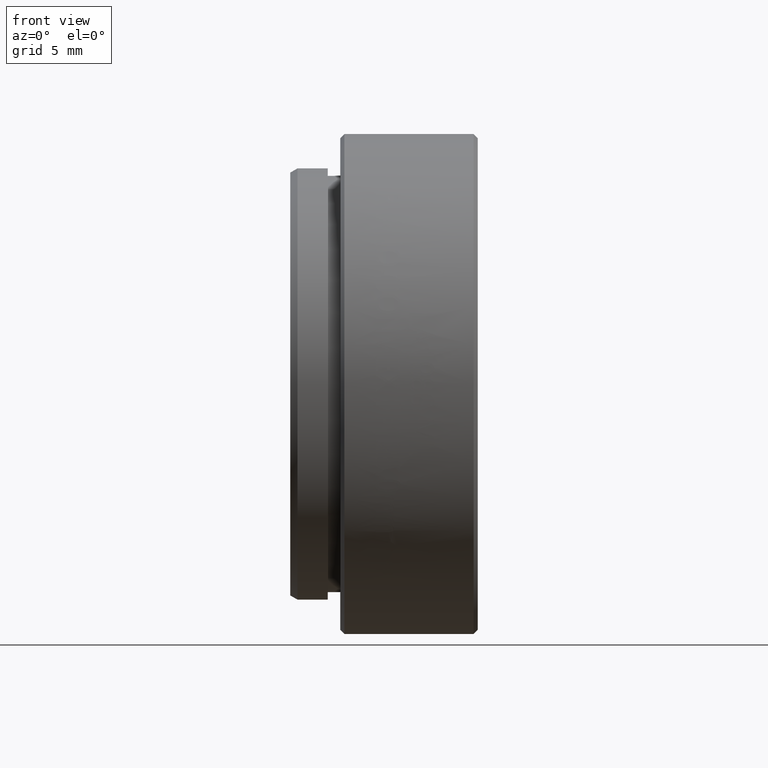
[diagram: clean part render]
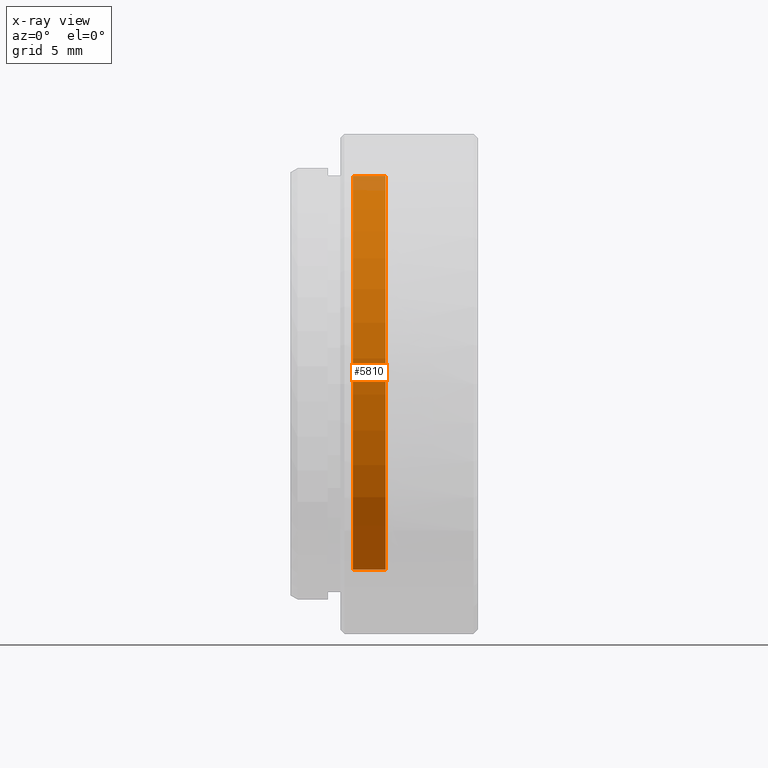
[diagram: x-ray — body ghosted, one internal face saturated and labeled with its STEP entity id]
A machine part, front view, then the same camera in x-ray: the body is ghosted and one INTERNAL B-rep face — a face not visible from any outside direction — is saturated and labeled: STEP entity #5810.
In plain terms, the highlighted cylindrical surface (partial cylindrical patch) has radius 12.7 mm, axis along (1, 0, 0).
Its self-contained STEP definition (entity closure, byte-faithful):
#280 = EDGE_CURVE ( 'NONE', #6030, #602, #8884, .T. ) ;
#315 = CIRCLE ( 'NONE', #7697, 12.69999999999999929 ) ;
#496 = AXIS2_PLACEMENT_3D ( 'NONE', #2512, #4868, #5586 ) ;
#602 = VERTEX_POINT ( 'NONE', #7091 ) ;
#735 = DIRECTION ( 'NONE',  ( 0.0000000000000000000, -0.4552824933293436183, -0.8903470397928081592 ) ) ;
#1077 = LINE ( 'NONE', #9301, #8631 ) ;
#1447 = EDGE_CURVE ( 'NONE', #1611, #3067, #3310, .T. ) ;
#1563 = DIRECTION ( 'NONE',  ( 1.000000000000000000, 0.0000000000000000000, 0.0000000000000000000 ) ) ;
#1611 = VERTEX_POINT ( 'NONE', #7982 ) ;
#1694 = CIRCLE ( 'NONE', #8355, 12.69999999999999929 ) ;
#1726 = CARTESIAN_POINT ( 'NONE',  ( -1.681867954599626014, -5.782087665282663380, -11.30740740536866262 ) ) ;
#2293 = VERTEX_POINT ( 'NONE', #5865 ) ;
#2426 = CARTESIAN_POINT ( 'NONE',  ( -5.625069912103984215, -11.30740740536865729, 5.782087665282662492 ) ) ;
#2512 = CARTESIAN_POINT ( 'NONE',  ( -5.625069912103983327, 0.0000000000000000000, 9.629649721936179265E-32 ) ) ;
#2681 = FACE_OUTER_BOUND ( 'NONE', #9966, .T. ) ;
#3018 = CARTESIAN_POINT ( 'NONE',  ( -7.619999999999991225, -5.782087665282663380, -11.30740740536866262 ) ) ;
#3067 = VERTEX_POINT ( 'NONE', #2426 ) ;
#3310 = CIRCLE ( 'NONE', #496, 12.69999999999999929 ) ;
#3421 = AXIS2_PLACEMENT_3D ( 'NONE', #7510, #5211, #735 ) ;
#3438 = ORIENTED_EDGE ( 'NONE', *, *, #280, .T. ) ;
#3446 = CARTESIAN_POINT ( 'NONE',  ( -7.619999999999991225, 0.0000000000000000000, 9.629649721936179265E-32 ) ) ;
#4095 = EDGE_CURVE ( 'NONE', #2293, #1611, #1077, .T. ) ;
#4243 = EDGE_CURVE ( 'NONE', #3067, #602, #315, .T. ) ;
#4311 = EDGE_CURVE ( 'NONE', #2293, #6030, #1694, .T. ) ;
#4868 = DIRECTION ( 'NONE',  ( 1.000000000000000000, 0.0000000000000000000, 0.0000000000000000000 ) ) ;
#4898 = DIRECTION ( 'NONE',  ( 1.000000000000000000, 0.0000000000000000000, 0.0000000000000000000 ) ) ;
#5211 = DIRECTION ( 'NONE',  ( 1.000000000000000000, 0.0000000000000000000, 0.0000000000000000000 ) ) ;
#5442 = ORIENTED_EDGE ( 'NONE', *, *, #4095, .F. ) ;
#5586 = DIRECTION ( 'NONE',  ( 0.0000000000000000000, -0.4552824933293436183, -0.8903470397928081592 ) ) ;
#5810 = ADVANCED_FACE ( 'NONE', ( #2681 ), #8729, .T. ) ;
#5821 = CARTESIAN_POINT ( 'NONE',  ( -5.625069912103983327, 0.0000000000000000000, 9.629649721936179265E-32 ) ) ;
#5865 = CARTESIAN_POINT ( 'NONE',  ( -7.619999999999991225, 5.782087665282664268, 11.30740740536866085 ) ) ;
#6030 = VERTEX_POINT ( 'NONE', #3018 ) ;
#6970 = ORIENTED_EDGE ( 'NONE', *, *, #4243, .F. ) ;
#7091 = CARTESIAN_POINT ( 'NONE',  ( -5.625069912103983327, -5.782087665282663380, -11.30740740536866262 ) ) ;
#7344 = DIRECTION ( 'NONE',  ( 1.000000000000000000, 0.0000000000000000000, 0.0000000000000000000 ) ) ;
#7374 = DIRECTION ( 'NONE',  ( 0.0000000000000000000, -0.4552824933293436183, -0.8903470397928081592 ) ) ;
#7510 = CARTESIAN_POINT ( 'NONE',  ( -1.681867954599626014, 0.0000000000000000000, 9.629649721936179265E-32 ) ) ;
#7682 = VECTOR ( 'NONE', #7977, 1000.000000000000000 ) ;
#7697 = AXIS2_PLACEMENT_3D ( 'NONE', #5821, #7344, #7374 ) ;
#7855 = ORIENTED_EDGE ( 'NONE', *, *, #4311, .T. ) ;
#7977 = DIRECTION ( 'NONE',  ( 1.000000000000000000, 0.0000000000000000000, 0.0000000000000000000 ) ) ;
#7982 = CARTESIAN_POINT ( 'NONE',  ( -5.625069912103983327, 5.782087665282664268, 11.30740740536866085 ) ) ;
#8349 = ORIENTED_EDGE ( 'NONE', *, *, #1447, .F. ) ;
#8355 = AXIS2_PLACEMENT_3D ( 'NONE', #3446, #4898, #8861 ) ;
#8631 = VECTOR ( 'NONE', #1563, 1000.000000000000000 ) ;
#8729 = CYLINDRICAL_SURFACE ( 'NONE', #3421, 12.69999999999999929 ) ;
#8861 = DIRECTION ( 'NONE',  ( 0.0000000000000000000, -0.4552824933293436183, -0.8903470397928081592 ) ) ;
#8884 = LINE ( 'NONE', #1726, #7682 ) ;
#9301 = CARTESIAN_POINT ( 'NONE',  ( -1.681867954599626014, 5.782087665282664268, 11.30740740536866085 ) ) ;
#9966 = EDGE_LOOP ( 'NONE', ( #5442, #7855, #3438, #6970, #8349 ) ) ;